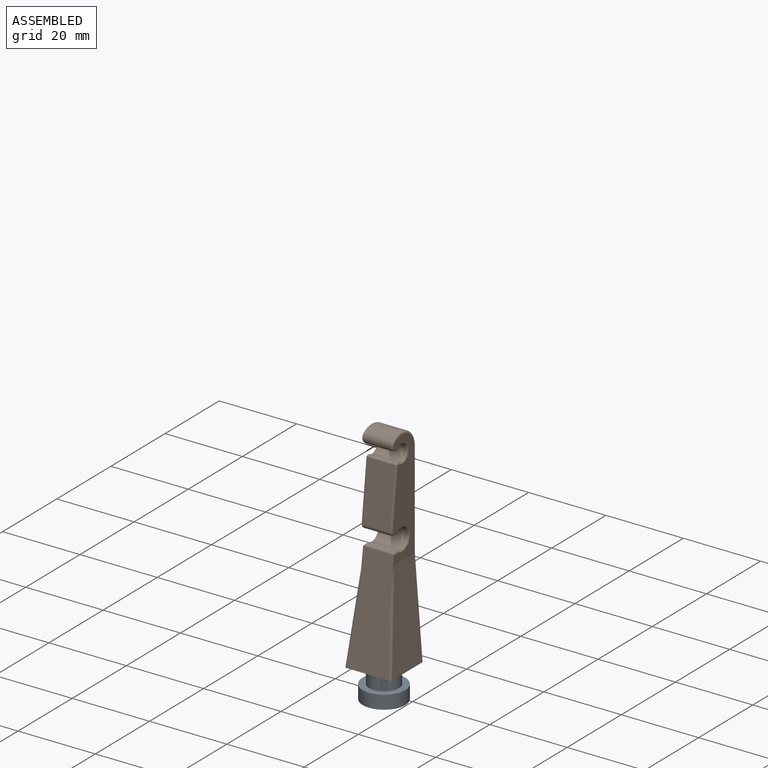
[diagram: assembled view]
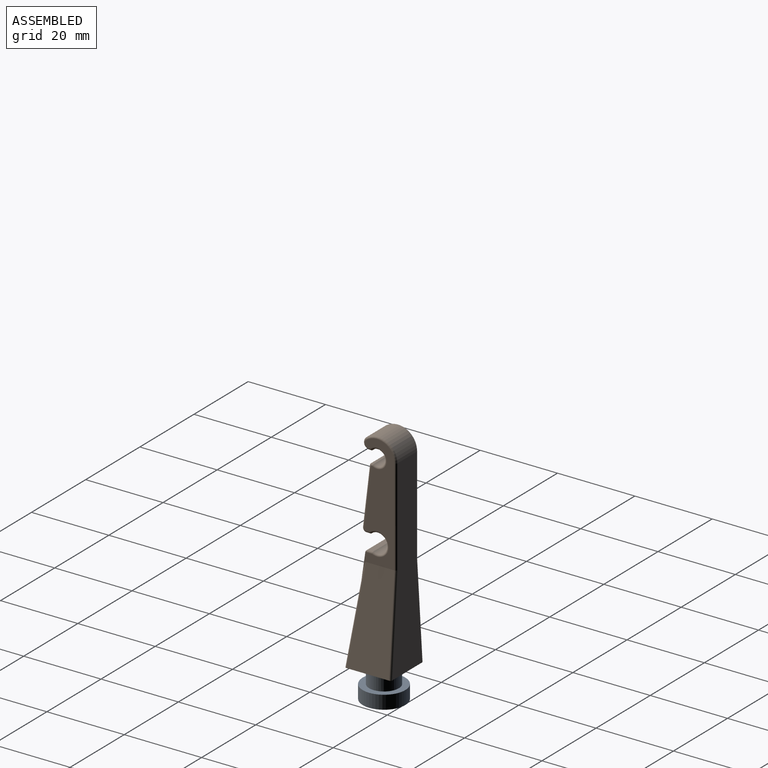
[diagram: assembled view, second angle]
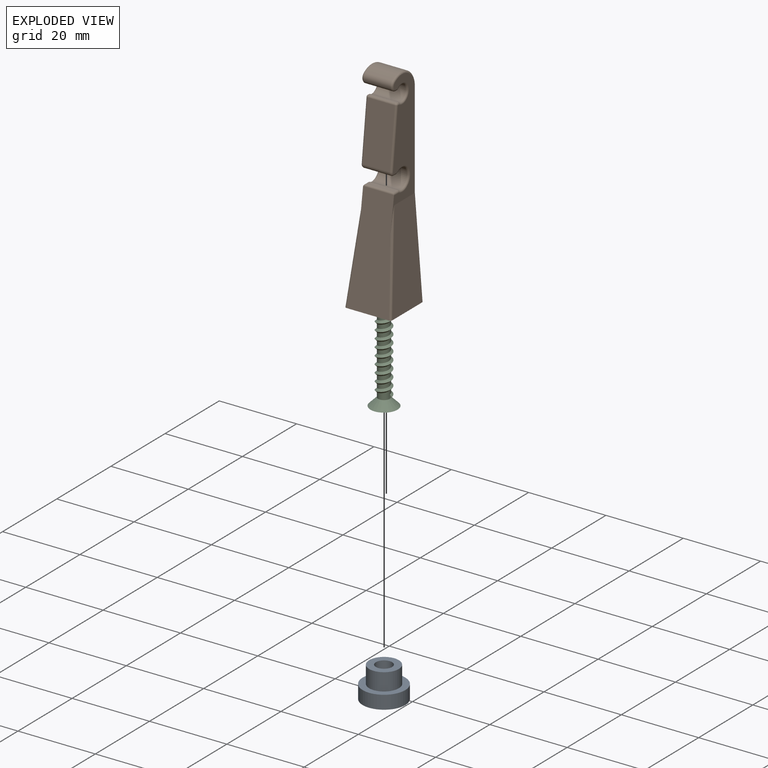
[diagram: exploded view]
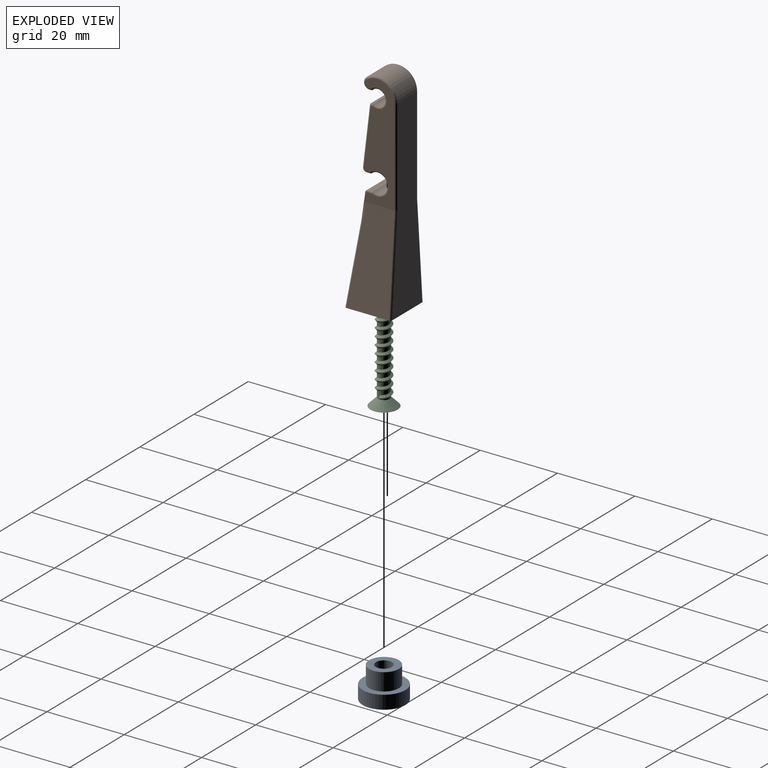
[diagram: exploded view, second angle]
ASSEMBLY  parts=3 mates=2
PART A: 7 faces, bbox 11x11x8 mm
  f0: cone r=2.1mm half-angle=45deg, axis (0,0,-1), area 46.3mm2, adj f1,f6
  f1: plane 11x11mm, normal (0,0,-1), area 48.5mm2, adj f0,f2
  f2: cylinder r=5.5mm len=11mm, axis (0,0,-1), area 121mm2, adj f1,f3
  f3: plane 11x11mm, normal (0,0,1), area 48.5mm2, adj f2,f4
  f4: cylinder r=3.85mm len=7.7mm, axis (0,0,-1), area 108.9mm2, adj f3,f5
  f5: plane 7.7x7.7mm, normal (0,0,1), area 32.7mm2, adj f4,f6
  f6: cylinder r=2.1mm len=6.25mm, axis (0,0,-1), area 82.5mm2, adj f0,f5
PART B: 64 faces, bbox 12x12.4x55.5 mm
  f0: plane 50x11mm, normal (0,1,0), area 399.9mm2, adj f7,f12,f34,f35,f54,f56
  f1: plane 14.94x7mm, normal (0,-0.99,0.12), area 105.3mm2, adj f2,f48,f52,f53
  f2: cylinder r=1mm len=7mm, axis (-1,0,0), area 11.8mm2, adj f1,f3,f45,f51
  f3: plane 7x1.12mm, normal (0,0,-1), area 7.9mm2, adj f2,f4,f42,f49
  f4: cylinder r=2.5mm len=7mm, axis (-1,0,0), area 77.1mm2, adj f3,f5,f39,f46
  f5: plane 7x1.34mm, normal (0,0,1), area 9.4mm2, adj f4,f37,f40,f43
  f6: plane 27.37x11.01mm, normal (0,-0.99,0.14), area 249.9mm2, adj f12,f30,f33,f37,f40,f43,f62,f63
  f7: cylinder r=5mm len=8mm, axis (-1,0,0), area 77.5mm2, adj f0,f8,f36,f58
  f8: cylinder r=1.5mm len=7mm, axis (-1,0,0), area 26.2mm2, adj f7,f9,f38,f60
  f9: plane 7x0.58mm, normal (0,0,-1), area 4.1mm2, adj f8,f10,f41,f61
  f10: cylinder r=2mm len=7mm, axis (-1,0,0), area 63.8mm2, adj f9,f11,f44,f59
  f11: plane 7x0.5mm, normal (0,0,1), area 3.5mm2, adj f10,f47,f52,f57
  f12: plane 12.02x12.02mm, normal (0,0,-1), area 134.7mm2, adj f0,f6,f13,f14,f15,f16,f17,f18
  f13: plane 20x0.52mm, normal (-1,0,0), area 10.4mm2, adj f12,f14,f28,f29
  f14: cylinder r=2mm len=20mm, axis (0,0,-1), area 20.2mm2, adj f12,f13,f15,f29
  f15: plane 20x0.52mm, normal (1,0,0), area 10.4mm2, adj f12,f14,f16,f29
  f16: cylinder r=1.5mm len=20mm, axis (0,0,-1), area 26.7mm2, adj f12,f15,f17,f29
  f17: plane 20x0.52mm, normal (0,1,0), area 10.4mm2, adj f12,f16,f18,f29
  f18: cylinder r=2mm len=20mm, axis (0,0,-1), area 20.2mm2, adj f12,f17,f19,f29
  f19: plane 20x0.52mm, normal (0,-1,0), area 10.4mm2, adj f12,f18,f20,f29
  f20: cylinder r=1.5mm len=20mm, axis (0,0,-1), area 26.7mm2, adj f12,f19,f21,f29
  f21: plane 20x0.52mm, normal (1,0,0), area 10.4mm2, adj f12,f20,f22,f29
  f22: cylinder r=2mm len=20mm, axis (0,0,-1), area 20.2mm2, adj f12,f21,f23,f29
  f23: plane 20x0.52mm, normal (-1,0,0), area 10.4mm2, adj f12,f22,f24,f29
  f24: cylinder r=1.5mm len=20mm, axis (0,0,-1), area 26.7mm2, adj f12,f23,f25,f29
  f25: plane 20x0.52mm, normal (0,-1,0), area 10.4mm2, adj f12,f24,f26,f29
  f26: cylinder r=2mm len=20mm, axis (0,0,-1), area 20.2mm2, adj f12,f25,f27,f29
  f27: plane 20x0.52mm, normal (0,1,0), area 10.4mm2, adj f12,f26,f28,f29
  f28: cylinder r=1.5mm len=20mm, axis (0,0,-1), area 26.7mm2, adj f12,f13,f27,f29
  f29: plane 4x4mm, normal (0,0,-1), area 9.1mm2, adj f13,f14,f15,f16,f17,f18,f19,f20
  f30: plane 35.7x8.77mm, normal (-1,0,0), area 155.6mm2, adj f6,f31,f43,f46,f49,f51,f53,f56
  f31: plane 25x11mm, normal (-1,0,0.08), area 230.3mm2, adj f12,f30,f54,f63
  f32: plane 25x11mm, normal (1,0,0.08), area 230.3mm2, adj f12,f33,f34,f62
  f33: plane 35.7x8.77mm, normal (1,0,0), area 155.6mm2, adj f6,f32,f35,f36,f37,f38,f39,f41
  f34: cylinder r=0.5mm len=25.06mm, axis (-0.08,0,1), area 19.7mm2, adj f0,f12,f32,f35
  f35: cylinder r=0.5mm len=25.02mm, axis (0,0,1), area 19.6mm2, adj f0,f33,f34,f36
  f36: torus R=4.5mm, axis (-1,0,0), area 8.4mm2, adj f7,f33,f35,f38
  f37: cylinder r=0.5mm len=1.84mm, axis (0,1,0), area 1.3mm2, adj f5,f6,f33,f39,f40
  f38: torus R=1mm, axis (-1,0,0), area 2.6mm2, adj f8,f33,f36,f41
  f39: torus R=3mm, axis (-1,0,0), area 9.2mm2, adj f4,f33,f37,f42
  f40: cylinder r=0.5mm len=7.99mm, axis (1,0,0), area 5.4mm2, adj f5,f6,f37,f43
  f41: cylinder r=0.5mm len=0.58mm, axis (0,-1,0), area 0.4mm2, adj f9,f33,f38,f44
  f42: cylinder r=0.5mm len=1.12mm, axis (0,-1,0), area 0.8mm2, adj f3,f33,f39,f45
  f43: cylinder r=0.5mm len=1.84mm, axis (0,-1,0), area 1.3mm2, adj f5,f6,f30,f40,f46
  f44: torus R=2.5mm, axis (-1,0,0), area 7.7mm2, adj f10,f33,f41,f47
  f45: torus R=0.5mm, axis (-1,0,0), area 1.1mm2, adj f2,f33,f42,f48
  f46: torus R=3mm, axis (-1,0,0), area 9.2mm2, adj f4,f30,f43,f49
  f47: cylinder r=0.5mm len=0.5mm, axis (0,1,0), area 0.4mm2, adj f11,f33,f44,f50
  f48: cylinder r=0.5mm len=15mm, axis (0,0.12,0.99), area 11.8mm2, adj f1,f33,f45,f50
  f49: cylinder r=0.5mm len=1.12mm, axis (0,1,0), area 0.8mm2, adj f3,f30,f46,f51
  f50: sphere r=0.5mm, area 0.4mm2, adj f47,f48,f52
  f51: torus R=0.5mm, axis (-1,0,0), area 1.1mm2, adj f2,f30,f49,f53
  f52: cylinder r=0.5mm len=7mm, axis (-1,0,0), area 5.1mm2, adj f1,f11,f50,f55
  f53: cylinder r=0.5mm len=15mm, axis (0,-0.12,-0.99), area 11.8mm2, adj f1,f30,f51,f55
  f54: cylinder r=0.5mm len=25.06mm, axis (-0.08,0,-1), area 19.7mm2, adj f0,f12,f31,f56
  f55: sphere r=0.5mm, area 0.4mm2, adj f52,f53,f57
  f56: cylinder r=0.5mm len=25.02mm, axis (0,0,-1), area 19.6mm2, adj f0,f30,f54,f58
  f57: cylinder r=0.5mm len=0.5mm, axis (0,-1,0), area 0.4mm2, adj f11,f30,f55,f59
  f58: torus R=4.5mm, axis (-1,0,0), area 8.4mm2, adj f7,f30,f56,f60
  f59: torus R=2.5mm, axis (-1,0,0), area 7.7mm2, adj f10,f30,f57,f61
  f60: torus R=1mm, axis (-1,0,0), area 2.6mm2, adj f8,f30,f58,f61
  f61: cylinder r=0.5mm len=0.58mm, axis (0,1,0), area 0.4mm2, adj f9,f30,f59,f60
  f62: cylinder r=0.5mm len=25.08mm, axis (-0.08,0.14,0.99), area 18mm2, adj f6,f12,f32,f33
  f63: cylinder r=0.5mm len=25.08mm, axis (-0.08,-0.14,-0.99), area 18mm2, adj f6,f12,f30,f31
PART C: 31 faces, bbox 7x7x25 mm
  f0: cylinder r=1.5mm len=3mm, axis (0,0,1), area 14.1mm2, adj f1,f13,f15,f17
  f1: cylinder r=1.5mm len=3mm, axis (0,0,1), area 9.4mm2, adj f0,f2,f16,f17
  f2: cylinder r=1.5mm len=3mm, axis (0,0,1), area 9.4mm2, adj f1,f3,f16,f17
  f3: cylinder r=1.5mm len=3mm, axis (0,0,1), area 9.4mm2, adj f2,f4,f16,f17
  f4: cylinder r=1.5mm len=3mm, axis (0,0,1), area 9.4mm2, adj f3,f5,f16,f17
  f5: cylinder r=1.5mm len=3mm, axis (0,0,1), area 9.4mm2, adj f4,f6,f16,f17
  f6: cylinder r=1.5mm len=3mm, axis (0,0,1), area 9.4mm2, adj f5,f7,f16,f17
  f7: cylinder r=1.5mm len=3mm, axis (0,0,1), area 9.4mm2, adj f6,f8,f16,f17
  f8: cylinder r=1.5mm len=3mm, axis (0,0,1), area 9.4mm2, adj f7,f9,f16,f17
  f9: cylinder r=1.5mm len=3mm, axis (0,0,1), area 9.4mm2, adj f8,f10,f16,f17
  f10: cylinder r=1.5mm len=3mm, axis (0,0,1), area 9.4mm2, adj f9,f12,f14,f16
  f11: plane 7x7mm, normal (0,0,-1), area 34.3mm2, adj f12,f18,f19,f20,f21,f22,f23,f24
  f12: cone r=3.5mm half-angle=45deg, axis (0,0,-1), area 44.4mm2, adj f10,f11
  f13: cone r=1.5mm half-angle=45deg, axis (0,0,-1), area 10mm2, adj f0
  f14: plane 1x0.5mm, normal (0,-1,0), area 0.3mm2, adj f10,f16,f17
  f15: plane 1x0.5mm, normal (0,1,0), area 0.3mm2, adj f0,f16,f17
  f16: bspline ~20.5x4.62mm, area 78.4mm2, adj f1,f2,f3,f4,f5,f6,f7,f8
  f17: bspline ~20.5x4.62mm, area 78.2mm2, adj f0,f1,f2,f3,f4,f5,f6,f7
  f18: plane 1x0.6mm, normal (1,0,0), area 0.6mm2, adj f11,f19,f29,f30
  f19: plane 1.6x1mm, normal (0,-1,0), area 1.6mm2, adj f11,f18,f20,f30
  f20: plane 1.6x1mm, normal (1,0,0), area 1.6mm2, adj f11,f19,f21,f30
  f21: plane 1x0.6mm, normal (0,-1,0), area 0.6mm2, adj f11,f20,f22,f30
  f22: plane 1.6x1mm, normal (-1,0,0), area 1.6mm2, adj f11,f21,f23,f30
  f23: plane 1.6x1mm, normal (0,-1,0), area 1.6mm2, adj f11,f22,f24,f30
  f24: plane 1x0.6mm, normal (-1,0,0), area 0.6mm2, adj f11,f23,f25,f30
  f25: plane 1.6x1mm, normal (0,1,0), area 1.6mm2, adj f11,f24,f26,f30
  f26: plane 1.6x1mm, normal (-1,0,0), area 1.6mm2, adj f11,f25,f27,f30
  f27: plane 1x0.6mm, normal (0,1,0), area 0.6mm2, adj f11,f26,f28,f30
  f28: plane 1.6x1mm, normal (1,0,0), area 1.6mm2, adj f11,f27,f29,f30
  f29: plane 1.6x1mm, normal (0,1,0), area 1.6mm2, adj f11,f18,f28,f30
  f30: plane 3.8x3.8mm, normal (0,0,-1), area 4.2mm2, adj f18,f19,f20,f21,f22,f23,f24,f25
PLACE A t=(-4.55,-4.01,-22.31)mm
PLACE B t=(-10.55,1.99,-14.31)mm
PLACE C t=(-4.55,-4.01,-22.31)mm
MATE fastened A.f0 <-> C.f0  axis (0,0,-1) through (-4.55,-4.01,-22.31)mm
MATE revolute B.f14 <-> A.f0  axis (0,0,-1) through (-4.55,-4.01,-14.31)mm
